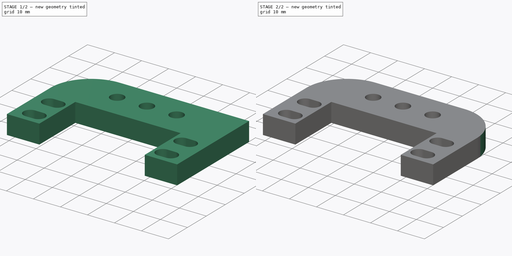
[diagram: build sequence overview — one tinted view per stage of 2, left to right]
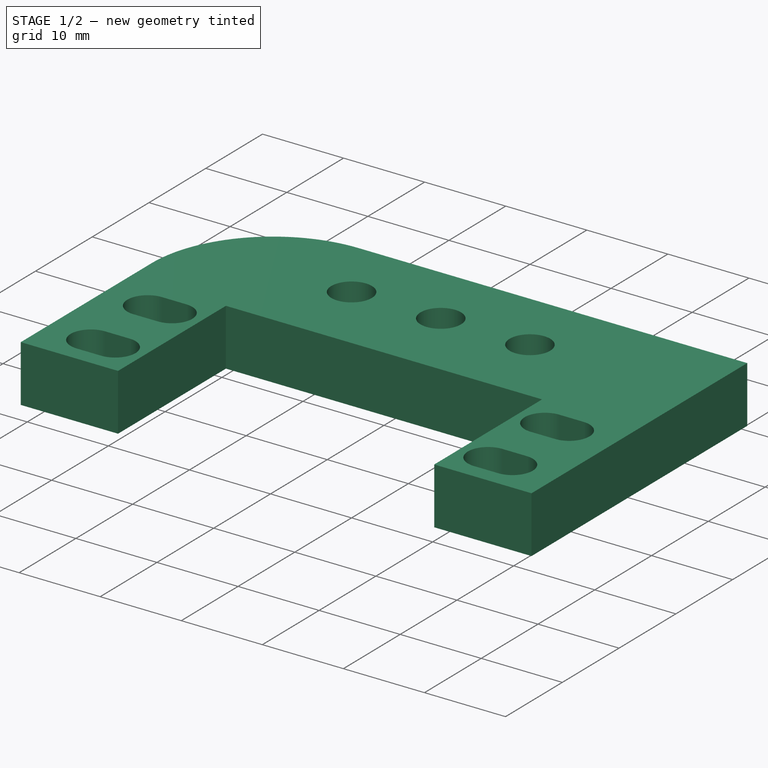
[diagram: stage 1 of 2 — iso view after this stage's code; geometry added in this stage tinted green]
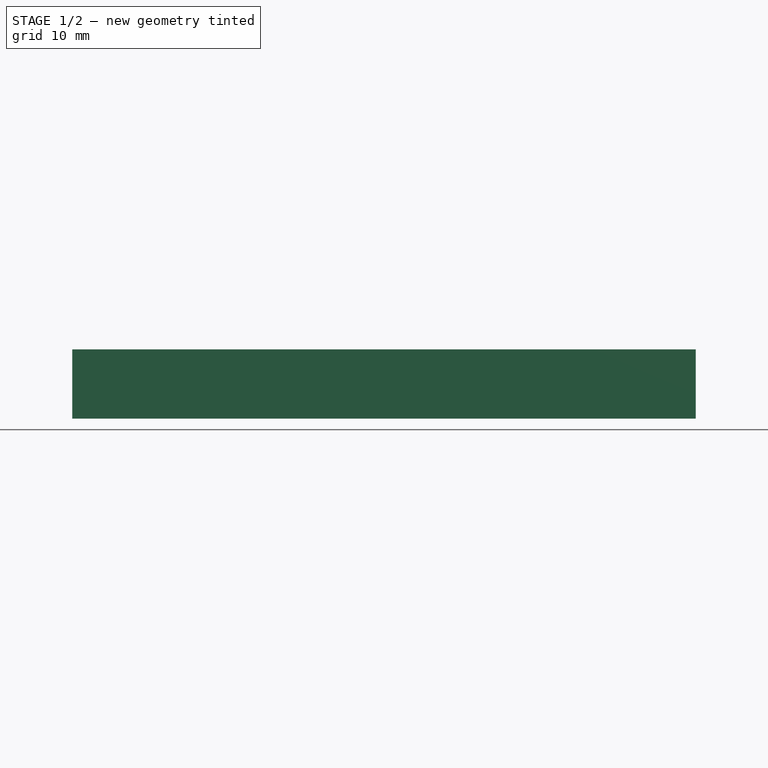
[diagram: stage 1 of 2 — front view after this stage's code; geometry added in this stage tinted green]
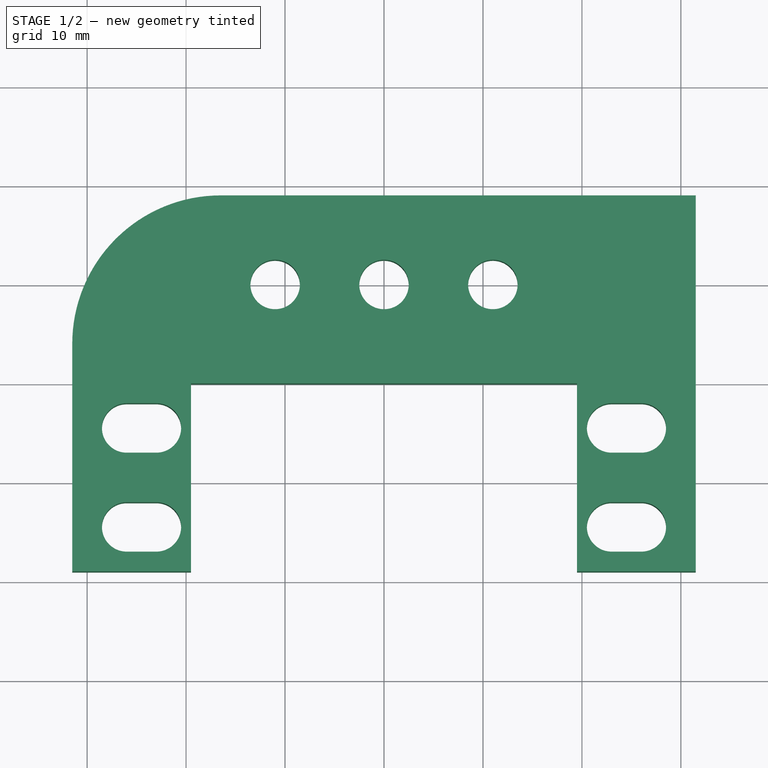
[diagram: stage 1 of 2 — top view after this stage's code; geometry added in this stage tinted green]
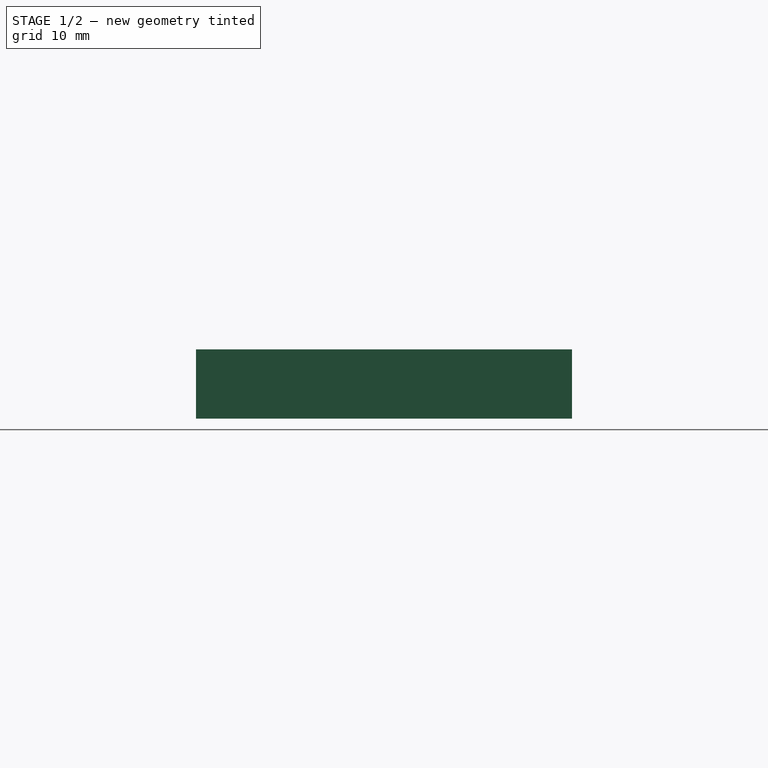
[diagram: stage 1 of 2 — right view after this stage's code; geometry added in this stage tinted green]
FCSTD DOCUMENT  (FreeCAD 0.21R33694 (Git))
Label: C577_mount
License: All rights reserved
LicenseURL: https://en.wikipedia.org/wiki/All_rights_reserved
objects: PartDesign::Fillet×2, Sketcher::SketchObject×1, PartDesign::Pad×1, PartDesign::Body×1
note: 8 computed .brp shape members not serialized (recipe doc carries the construction recipe); baked Part::Feature solids carry a one-line shape summary decoded from their .brp

FEATURE [Sketcher::SketchObject] Sketch
  FullyConstrained = true
  sketch-geometry (27):
    g0: LineSegment StartX=-31.5 StartY=19 StartZ=0 EndX=31.5 EndY=19 EndZ=0
    g1: LineSegment StartX=31.5 StartY=19 StartZ=0 EndX=31.5 EndY=-19 EndZ=0
    g2: LineSegment StartX=31.5 StartY=-19 StartZ=0 EndX=19.5 EndY=-19 EndZ=0
    g3: LineSegment StartX=19.5 StartY=-19 StartZ=0 EndX=19.5 EndY=0 EndZ=0
    g4: LineSegment StartX=19.5 StartY=0 StartZ=0 EndX=-19.5 EndY=0 EndZ=0
    g5: LineSegment StartX=-19.5 StartY=0 StartZ=0 EndX=-19.5 EndY=-19 EndZ=0
    g6: LineSegment StartX=-19.5 StartY=-19 StartZ=0 EndX=-31.5 EndY=-19 EndZ=0
    g7: LineSegment StartX=-31.5 StartY=-19 StartZ=0 EndX=-31.5 EndY=19 EndZ=0
    g8: Circle CenterX=-11 CenterY=10 CenterZ=0 NormalX=0 NormalY=0 NormalZ=1 AngleXU=0 Radius=2.5
    g9: Circle CenterX=0 CenterY=10 CenterZ=0 NormalX=0 NormalY=0 NormalZ=1 AngleXU=0 Radius=2.5
    g10: Circle CenterX=11 CenterY=10 CenterZ=0 NormalX=0 NormalY=0 NormalZ=1 AngleXU=0 Radius=2.5
    g11: ArcOfCircle CenterX=-26 CenterY=-4.5 CenterZ=0 NormalX=0 NormalY=0 NormalZ=1 AngleXU=0 Radius=2.5 StartAngle=1.5708 EndAngle=4.71239
    g12: ArcOfCircle CenterX=-23 CenterY=-4.5 CenterZ=0 NormalX=0 NormalY=0 NormalZ=1 AngleXU=0 Radius=2.5 StartAngle=4.71239 EndAngle=7.85398
    g13: LineSegment StartX=-26 StartY=-7 StartZ=0 EndX=-23 EndY=-7 EndZ=0
    g14: LineSegment StartX=-23 StartY=-2 StartZ=0 EndX=-26 EndY=-2 EndZ=0
    g15: ArcOfCircle CenterX=-26 CenterY=-14.5 CenterZ=0 NormalX=0 NormalY=0 NormalZ=1 AngleXU=0 Radius=2.5 StartAngle=1.5708 EndAngle=4.71239
    g16: ArcOfCircle CenterX=-23 CenterY=-14.5 CenterZ=0 NormalX=0 NormalY=0 NormalZ=1 AngleXU=0 Radius=2.5 StartAngle=4.71239 EndAngle=7.85398
    g17: LineSegment StartX=-26 StartY=-17 StartZ=0 EndX=-23 EndY=-17 EndZ=0
    g18: LineSegment StartX=-23 StartY=-12 StartZ=0 EndX=-26 EndY=-12 EndZ=0
    g19: ArcOfCircle CenterX=23 CenterY=-4.5 CenterZ=0 NormalX=0 NormalY=0 NormalZ=1 AngleXU=0 Radius=2.5 StartAngle=1.5708 EndAngle=4.71239
    g20: ArcOfCircle CenterX=26 CenterY=-4.5 CenterZ=0 NormalX=0 NormalY=0 NormalZ=1 AngleXU=0 Radius=2.5 StartAngle=4.71239 EndAngle=7.85398
    g21: LineSegment StartX=23 StartY=-7 StartZ=0 EndX=26 EndY=-7 EndZ=0
    g22: LineSegment StartX=26 StartY=-2 StartZ=0 EndX=23 EndY=-2 EndZ=0
    g23: ArcOfCircle CenterX=23 CenterY=-14.5 CenterZ=0 NormalX=0 NormalY=0 NormalZ=1 AngleXU=0 Radius=2.5 StartAngle=1.5708 EndAngle=4.71239
    g24: ArcOfCircle CenterX=26 CenterY=-14.5 CenterZ=0 NormalX=0 NormalY=0 NormalZ=1 AngleXU=0 Radius=2.5 StartAngle=4.71239 EndAngle=7.85398
    g25: LineSegment StartX=23 StartY=-17 StartZ=0 EndX=26 EndY=-17 EndZ=0
    g26: LineSegment StartX=26 StartY=-12 StartZ=0 EndX=23 EndY=-12 EndZ=0
  constraints (71):
    c: Coincident(g0,g1)
    c: Vertical(g1)
    c: Coincident(g1,g2)
    c: Horizontal(g2)
    c: Coincident(g2,g3)
    c: Vertical(g3)
    c: Coincident(g3,g4)
    c: Horizontal(g4)
    c: Coincident(g4,g5)
    c: Vertical(g5)
    c: Coincident(g5,g6)
    c: Horizontal(g6)
    c: Coincident(g6,g7)
    c: Coincident(g7,g0)
    c: Vertical(g7)
    c: Symmetric(g0,g0,g-2)
    c: DistanceY(g3,g-1) = 0
    c: DistanceY(g3,g0) = 19
    c: DistanceY(g5,g4) = 19
    c: DistanceY(g-1,g9) = 10
    c: DistanceY(g-1,g10) = 10
    c: Diameter(g9) = 5
    c: Diameter(g10) = 5
    c: Diameter(g8) = 5
    c: Symmetric(g10,g8,g-2)
    c: Symmetric(g4,g3,g-2)
    c: DistanceX(g5,g-1) = 19.5
    c: DistanceX(g8,g-1) = 11
    c: Equal(g1,g7)
    c: DistanceX(g2,g2) = 12
    c: Tangent(g11,g13) = -1.5708
    c: Tangent(g13,g12) = -1.5708
    c: Tangent(g12,g14) = -1.5708
    c: Tangent(g14,g11) = -1.5708
    c: Equal(g11,g12)
    c: Horizontal(g13)
    c: Tangent(g15,g17) = -1.5708
    c: Tangent(g17,g16) = -1.5708
    c: Tangent(g16,g18) = -1.5708
    c: Tangent(g18,g15) = -1.5708
    c: Equal(g15,g16)
    c: Horizontal(g17)
    c: Diameter(g11) = 5
    c: DistanceX(g11,g12) = 3
    c: DistanceY(g12,g4) = 4.5
    c: DistanceX(g12,g5) = 3.5
    c: DistanceX(g15,g16) = 3
    c: Diameter(g16) = 5
    c: DistanceX(g16,g5) = 3.5
    c: DistanceY(g15,g11) = 10
    c: Tangent(g19,g21) = -1.5708
    c: Tangent(g21,g20) = -1.5708
    c: Tangent(g20,g22) = -1.5708
    c: Tangent(g22,g19) = -1.5708
    c: Equal(g19,g20)
    c: Horizontal(g21)
    c: Tangent(g23,g25) = -1.5708
    c: Tangent(g25,g24) = -1.5708
    c: Tangent(g24,g26) = -1.5708
    c: Tangent(g26,g23) = -1.5708
    c: Equal(g23,g24)
    c: Horizontal(g25)
    c: Equal(g19,g23)
    c: Diameter(g19) = 5
    c: Vertical(g19,g23)
    c: DistanceX(g19,g20) = 3
    c: DistanceX(g3,g19) = 3.5
    c: DistanceY(g23,g19) = 10
    c: DistanceY(g19,g3) = 4.5
    c: DistanceX(g23,g24) = 3
    c: DistanceX(g9,g-1) = 0
FEATURE [PartDesign::Pad] Pad
  Direction = (0,0,1)
  Length = 7
  Length2 = 10
  Profile = -> Sketch
  ReferenceAxis = -> Sketch [N_Axis]
  Type = 0
FEATURE [PartDesign::Fillet] Fillet
  Base = -> Pad [Edge1]
  BaseFeature = -> Pad
  Radius = 15
  SupportTransform = false
  UseAllEdges = false
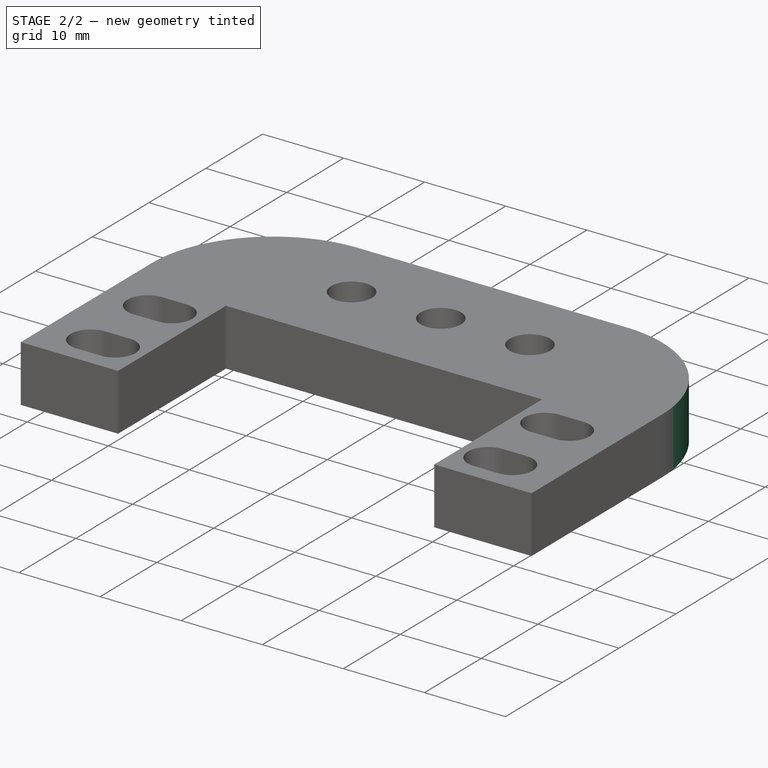
[diagram: stage 2 of 2 — iso view after this stage's code; geometry added in this stage tinted green]
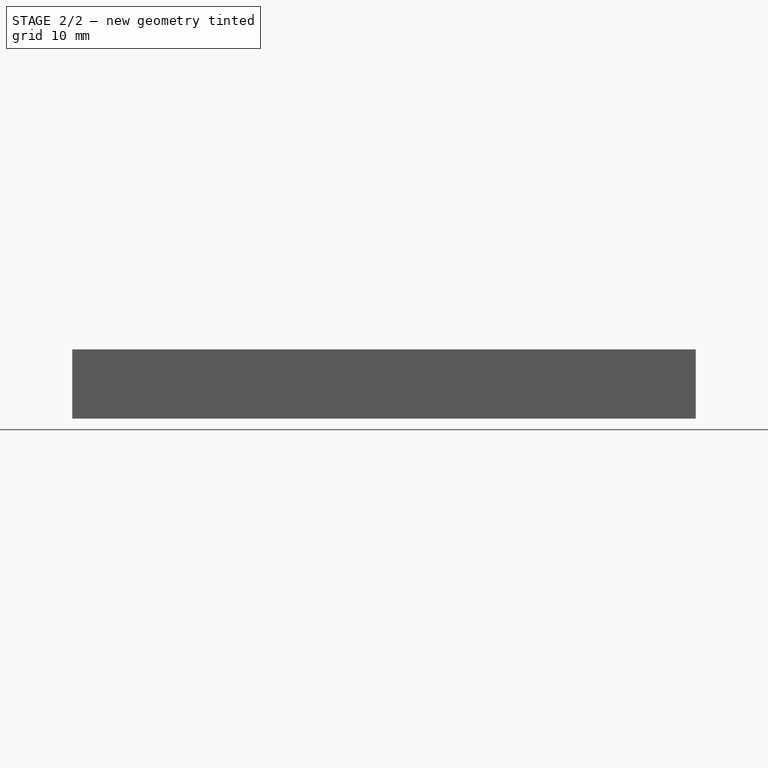
[diagram: stage 2 of 2 — front view after this stage's code; geometry added in this stage tinted green]
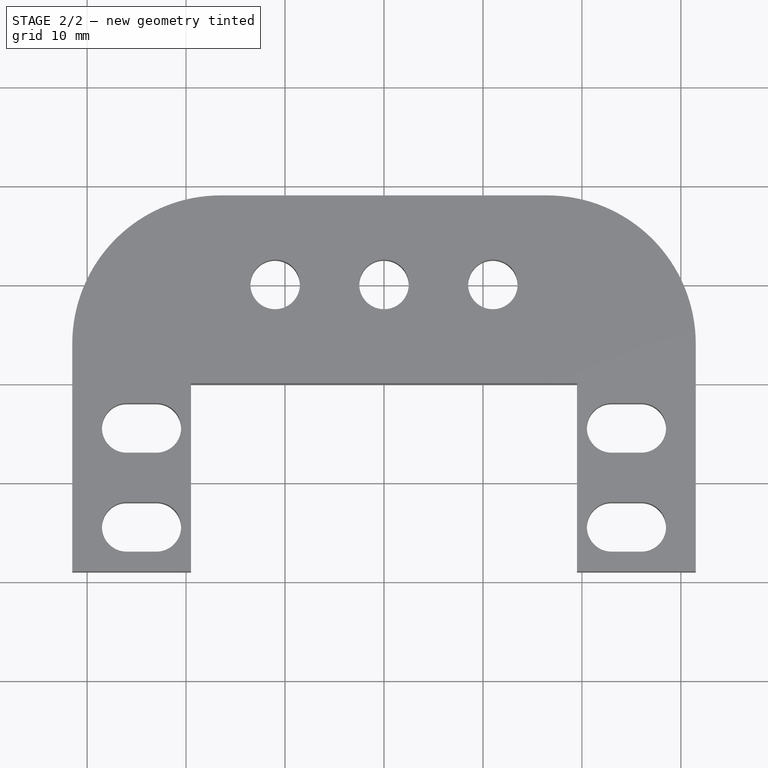
[diagram: stage 2 of 2 — top view after this stage's code; geometry added in this stage tinted green]
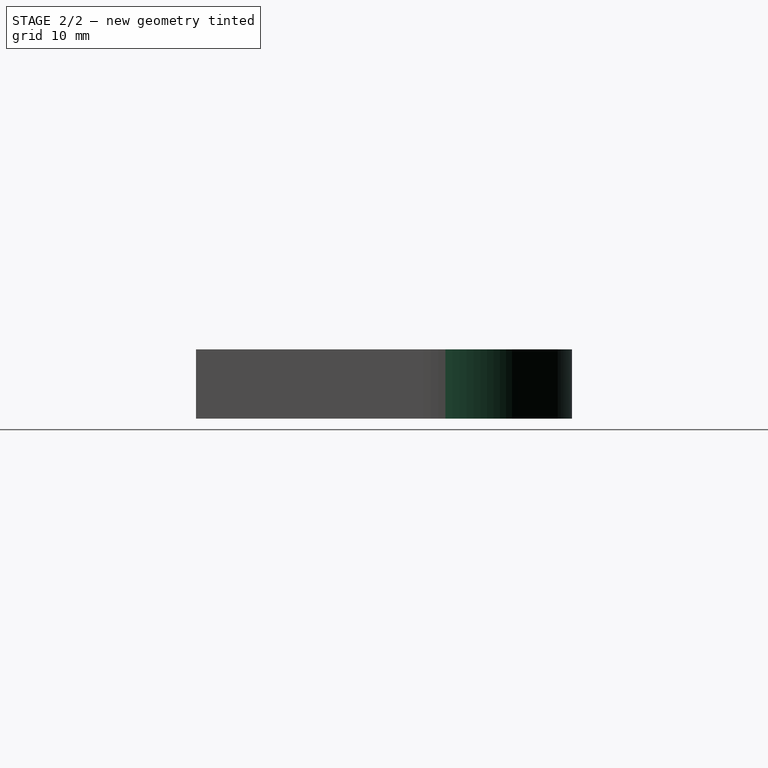
[diagram: stage 2 of 2 — right view after this stage's code; geometry added in this stage tinted green]
FEATURE [PartDesign::Fillet] Fillet001
  Base = -> Fillet [Edge3]
  BaseFeature = -> Fillet
  Radius = 15
  SupportTransform = false
  UseAllEdges = false
FEATURE [PartDesign::Body] Body
  Group = -> [Sketch,Pad,Fillet,Fillet001]
  Origin = -> Origin
  Tip = -> Fillet001
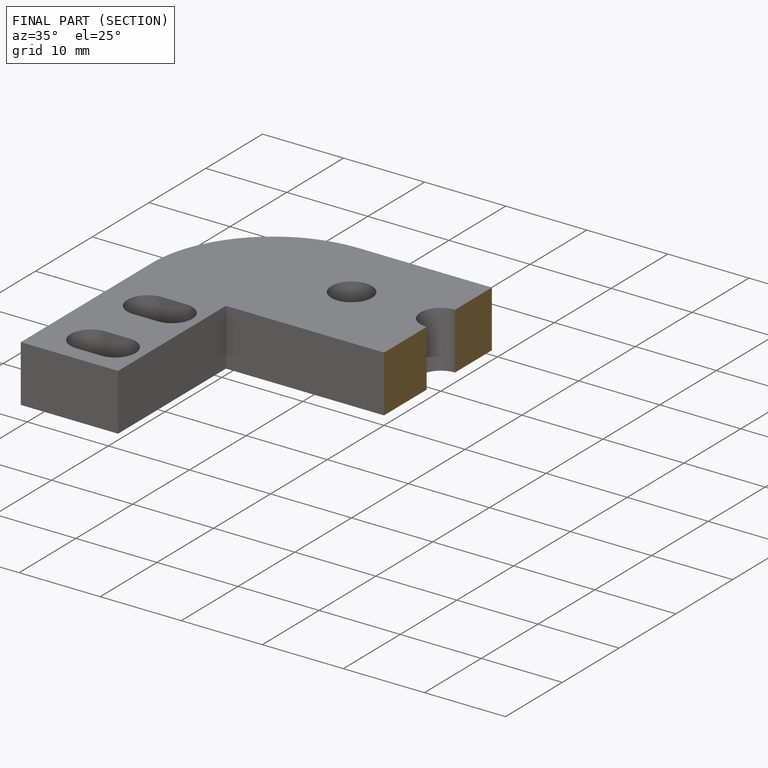
[diagram: finished part — half-section view (interior)]
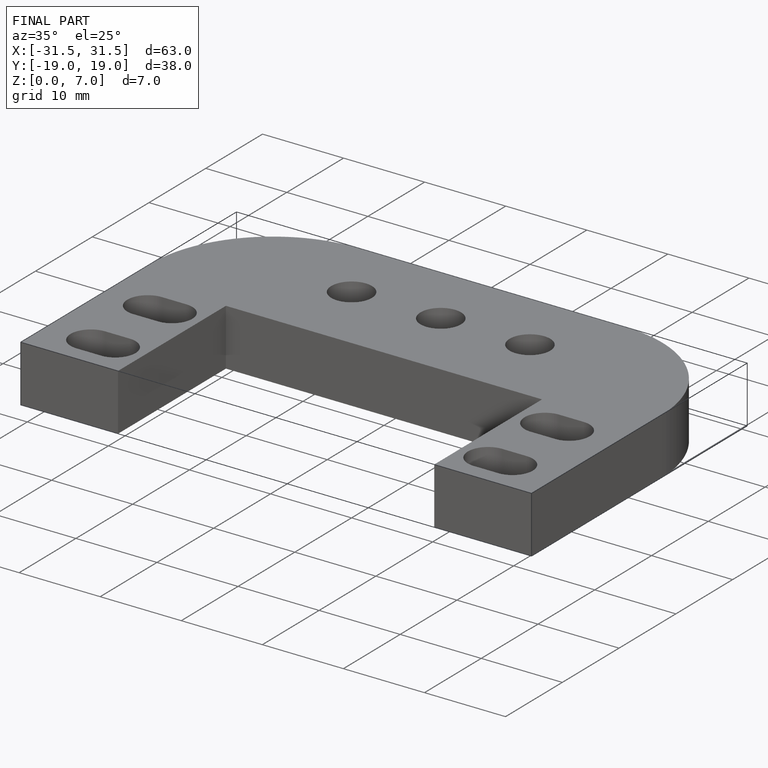
[diagram: finished part — iso view with bounding-box wireframe]
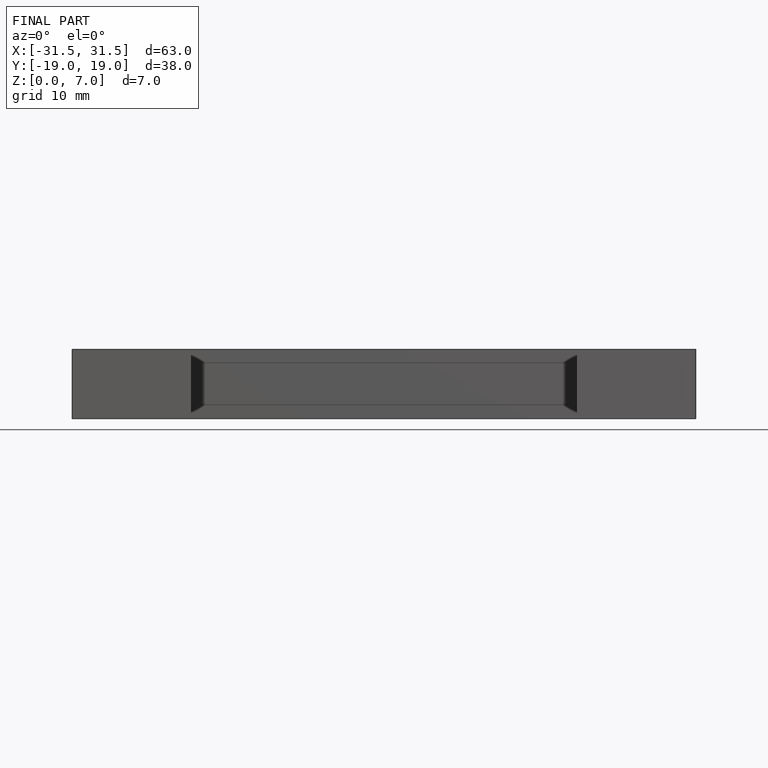
[diagram: finished part — front view with bounding-box wireframe]
